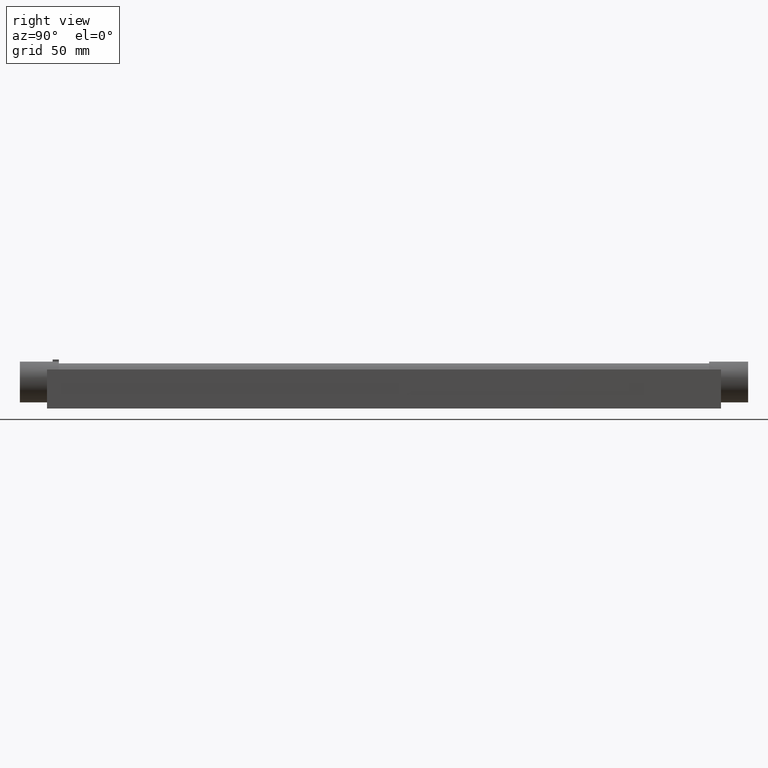
[diagram: clean part render]
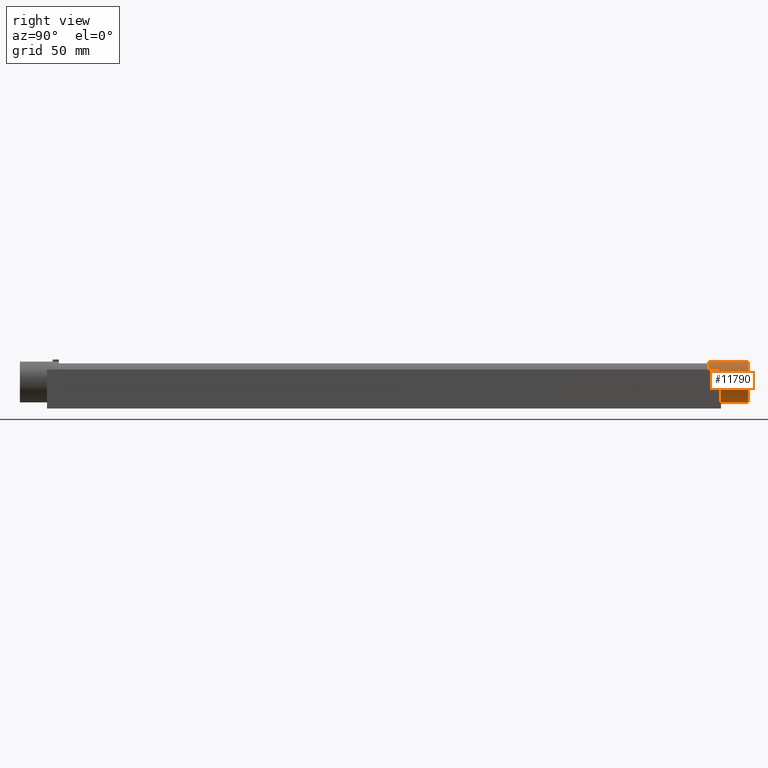
[diagram: same view with one face highlighted and labeled with its STEP entity id]
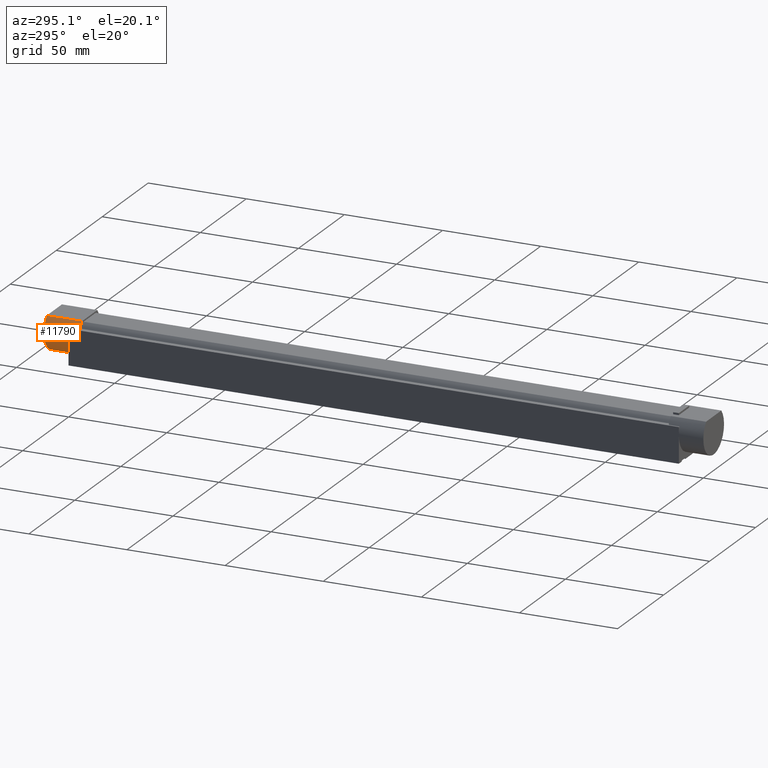
[diagram: same view with one face highlighted and labeled with its STEP entity id]
A machine part, right view. The second image highlights one B-rep face of the part: STEP entity #11790.
A second angle (auxiliary view) of the same face is appended — the face is thin or edge-on in the first view.
In plain terms, the highlighted cylindrical surface (edge-blend (fillet) strip) has radius 11.2492 mm, axis along (0, 1, 0).
Its self-contained STEP definition (entity closure, byte-faithful):
#440=CARTESIAN_POINT('',(318.,10.514041296652,-22.));
#450=VERTEX_POINT('',#440);
#480=CARTESIAN_POINT('',(322.279995430855,10.514041296652,-22.));
#490=DIRECTION('',(1.,0.,0.));
#500=VECTOR('',#490,1.);
#510=LINE('',#480,#500);
#520=CARTESIAN_POINT('',(323.5,10.514041296652,-22.));
#530=VERTEX_POINT('',#520);
#540=EDGE_CURVE('',#450,#530,#510,.T.);
#2400=CARTESIAN_POINT('',(323.5,11.25,-18.));
#2410=VERTEX_POINT('',#2400);
#2920=CARTESIAN_POINT('',(323.5,-11.25,-18.));
#2930=VERTEX_POINT('',#2920);
#10450=CARTESIAN_POINT('',(323.5,-10.514041296652,-22.));
#10460=VERTEX_POINT('',#10450);
#10500=CARTESIAN_POINT('',(323.5,0.,-18.));
#10510=DIRECTION('',(1.,0.,0.));
#10520=DIRECTION('',(0.,0.,1.));
#10530=AXIS2_PLACEMENT_3D('',#10500,#10510,#10520);
#10540=CIRCLE('',#10530,11.2492250572074);
#10550=EDGE_CURVE('',#2930,#10460,#10540,.T.);
#11220=CARTESIAN_POINT('',(322.279995430855,0.,-18.));
#11230=DIRECTION('',(1.,0.,0.));
#11240=DIRECTION('',(0.,0.,1.));
#11250=AXIS2_PLACEMENT_3D('',#11220,#11230,#11240);
#11260=CYLINDRICAL_SURFACE('',#11250,11.2492250572074);
#11270=CARTESIAN_POINT('',(318.,0.,-18.));
#11280=DIRECTION('',(-1.,0.,0.));
#11290=DIRECTION('',(0.,-2.36863894672745E-16,1.));
#11300=AXIS2_PLACEMENT_3D('',#11270,#11280,#11290);
#11310=CIRCLE('',#11300,11.2492250572074);
#11320=CARTESIAN_POINT('',(318.,-8.29004981596238,-25.6039554467767));
#11330=VERTEX_POINT('',#11320);
#11340=CARTESIAN_POINT('',(318.,-10.514041296652,-22.));
#11350=VERTEX_POINT('',#11340);
#11360=EDGE_CURVE('',#11330,#11350,#11310,.T.);
#11370=ORIENTED_EDGE('',*,*,#11360,.F.);
#11380=CARTESIAN_POINT('',(322.279995430855,-10.514041296652,-22.));
#11390=DIRECTION('',(1.,0.,0.));
#11400=VECTOR('',#11390,1.);
#11410=LINE('',#11380,#11400);
#11420=EDGE_CURVE('',#11350,#10460,#11410,.T.);
#11430=ORIENTED_EDGE('',*,*,#11420,.F.);
#11440=ORIENTED_EDGE('',*,*,#10550,.T.);
#11450=EDGE_CURVE('',#2410,#2930,#10540,.T.);
#11460=ORIENTED_EDGE('',*,*,#11450,.T.);
#11470=EDGE_CURVE('',#530,#2410,#10540,.T.);
#11480=ORIENTED_EDGE('',*,*,#11470,.T.);
#11490=ORIENTED_EDGE('',*,*,#540,.T.);
#11500=CARTESIAN_POINT('',(318.,8.29004981596237,-25.6039554467767));
#11510=VERTEX_POINT('',#11500);
#11520=EDGE_CURVE('',#450,#11510,#11310,.T.);
#11530=ORIENTED_EDGE('',*,*,#11520,.F.);
#11540=CARTESIAN_POINT('',(336.,8.29004981596238,-25.6039554467767));
#11550=DIRECTION('',(-1.,0.,0.));
#11560=VECTOR('',#11550,1.);
#11570=LINE('',#11540,#11560);
#11580=CARTESIAN_POINT('',(336.,8.29004981596238,-25.6039554467767));
#11590=VERTEX_POINT('',#11580);
#11600=EDGE_CURVE('',#11590,#11510,#11570,.T.);
#11610=ORIENTED_EDGE('',*,*,#11600,.T.);
#11620=CARTESIAN_POINT('',(336.,0.,-18.));
#11630=DIRECTION('',(1.,0.,0.));
#11640=DIRECTION('',(0.,0.736944080485875,-0.675953713087537));
#11650=AXIS2_PLACEMENT_3D('',#11620,#11630,#11640);
#11660=CIRCLE('',#11650,11.2492250572074);
#11670=CARTESIAN_POINT('',(336.,-8.29004981596238,-25.6039554467767));
#11680=VERTEX_POINT('',#11670);
#11690=EDGE_CURVE('',#11590,#11680,#11660,.T.);
#11700=ORIENTED_EDGE('',*,*,#11690,.F.);
#11710=CARTESIAN_POINT('',(318.,-8.29004981596239,-25.6039554467767));
#11720=DIRECTION('',(1.,0.,0.));
#11730=VECTOR('',#11720,1.);
#11740=LINE('',#11710,#11730);
#11750=EDGE_CURVE('',#11330,#11680,#11740,.T.);
#11760=ORIENTED_EDGE('',*,*,#11750,.T.);
#11770=EDGE_LOOP('',(#11760,#11700,#11610,#11530,#11490,#11480,#11460,
#11440,#11430,#11370));
#11780=FACE_OUTER_BOUND('',#11770,.T.);
#11790=ADVANCED_FACE('',(#11780),#11260,.T.);